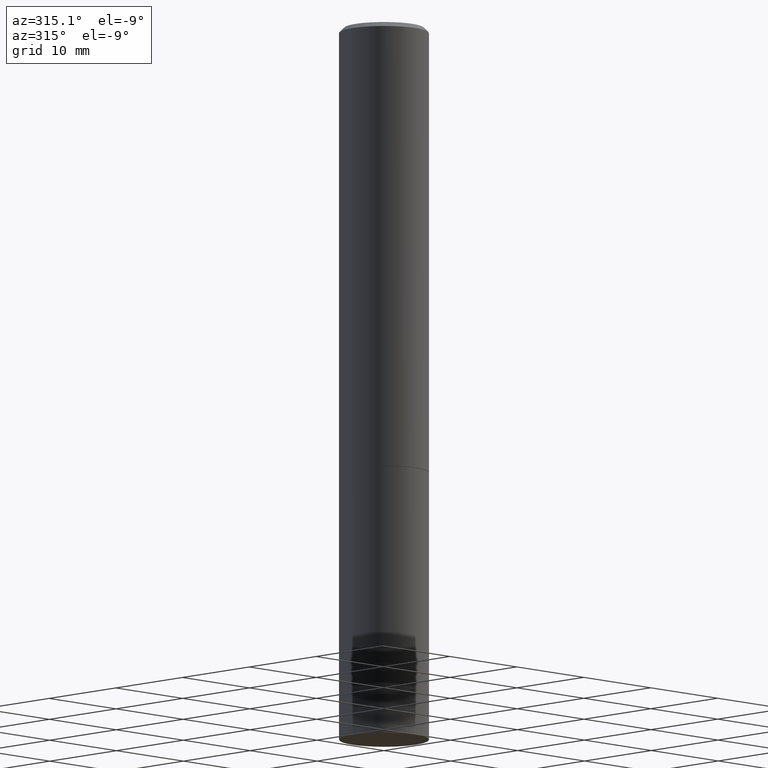
[diagram: clean part render]
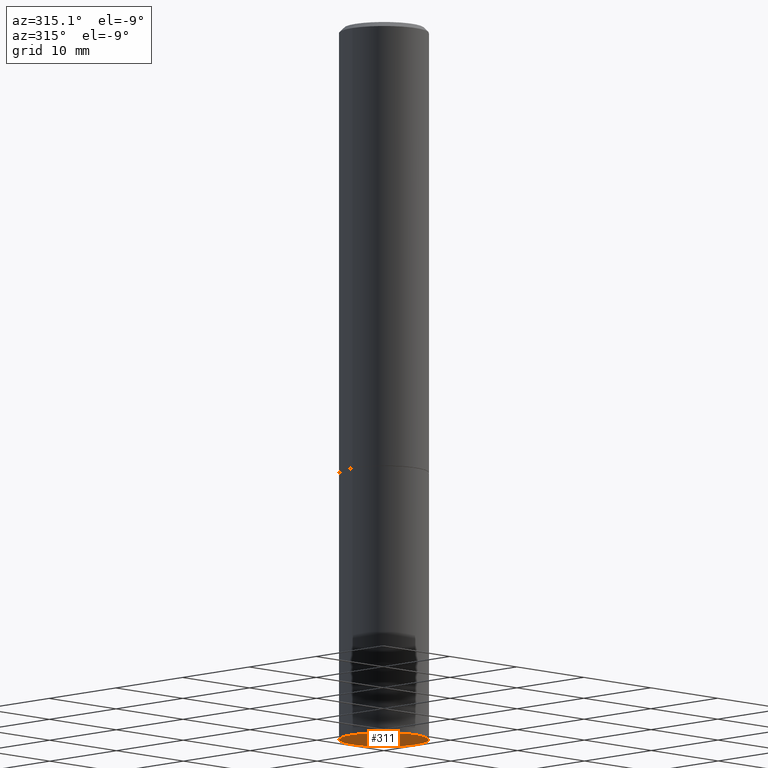
[diagram: same view with one face highlighted and labeled with its STEP entity id]
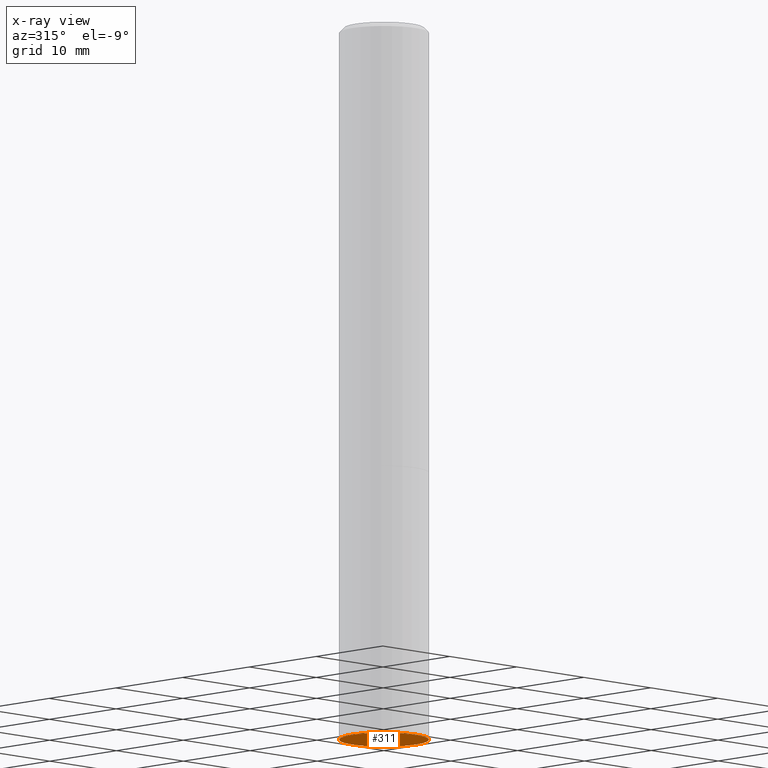
[diagram: x-ray of the same camera — body ghosted, the highlighted face saturated]
A machine part, auxiliary view. The second image highlights one B-rep face of the part: STEP entity #311.
The next image is the same camera in x-ray: the body ghosted, the highlighted face saturated — about 0% of this face is hidden behind the body in this view.
In plain terms, the highlighted planar face has unit normal (0, -0, -1).
Its self-contained STEP definition (entity closure, byte-faithful):
#9 = DIRECTION ( 'NONE',  ( -1.000000000000000000, 6.982962677686265922E-15, -4.876176775795935793E-29 ) ) ;
#22 = DIRECTION ( 'NONE',  ( 1.000000000000000000, -6.982962677686261189E-15, 0.000000000000000000 ) ) ;
#35 = ORIENTED_EDGE ( 'NONE', *, *, #87, .F. ) ;
#40 = DIRECTION ( 'NONE',  ( 1.000000000000000000, -6.982962677686261189E-15, 0.000000000000000000 ) ) ;
#52 = CIRCLE ( 'NONE', #265, 0.1875000000000000278 ) ;
#67 = AXIS2_PLACEMENT_3D ( 'NONE', #140, #348, #9 ) ;
#87 = EDGE_CURVE ( 'NONE', #175, #321, #155, .T. ) ;
#122 = CARTESIAN_POINT ( 'NONE',  ( 0.1875000000000000278, -1.178374951859561136E-14, -3.000000000000000444 ) ) ;
#140 = CARTESIAN_POINT ( 'NONE',  ( 1.309305502066248372E-15, 0.1874999999999895361, -3.000000000000000888 ) ) ;
#148 = FACE_OUTER_BOUND ( 'NONE', #266, .T. ) ;
#155 = CIRCLE ( 'NONE', #187, 0.1875000000000000278 ) ;
#175 = VERTEX_POINT ( 'NONE', #284 ) ;
#184 = DIRECTION ( 'NONE',  ( -2.445468806185136597E-29, 3.491481338843145583E-15, 1.000000000000000000 ) ) ;
#187 = AXIS2_PLACEMENT_3D ( 'NONE', #329, #184, #22 ) ;
#206 = DIRECTION ( 'NONE',  ( -2.445468806185136597E-29, 3.491481338843145583E-15, 1.000000000000000000 ) ) ;
#265 = AXIS2_PLACEMENT_3D ( 'NONE', #294, #206, #40 ) ;
#266 = EDGE_LOOP ( 'NONE', ( #350, #35 ) ) ;
#284 = CARTESIAN_POINT ( 'NONE',  ( -0.1875000000000000278, -7.178218133879978893E-15, -3.000000000000000444 ) ) ;
#288 = PLANE ( 'NONE',  #67 ) ;
#294 = CARTESIAN_POINT ( 'NONE',  ( 7.336406418555409790E-29, -1.047444401652943635E-14, -3.000000000000000444 ) ) ;
#299 = EDGE_CURVE ( 'NONE', #321, #175, #52, .T. ) ;
#311 = ADVANCED_FACE ( 'NONE', ( #148 ), #288, .T. ) ;
#321 = VERTEX_POINT ( 'NONE', #122 ) ;
#329 = CARTESIAN_POINT ( 'NONE',  ( 7.336406418555409790E-29, -1.047444401652943635E-14, -3.000000000000000444 ) ) ;
#348 = DIRECTION ( 'NONE',  ( 2.438088387897960049E-29, -3.491481338843145188E-15, -1.000000000000000000 ) ) ;
#350 = ORIENTED_EDGE ( 'NONE', *, *, #299, .F. ) ;